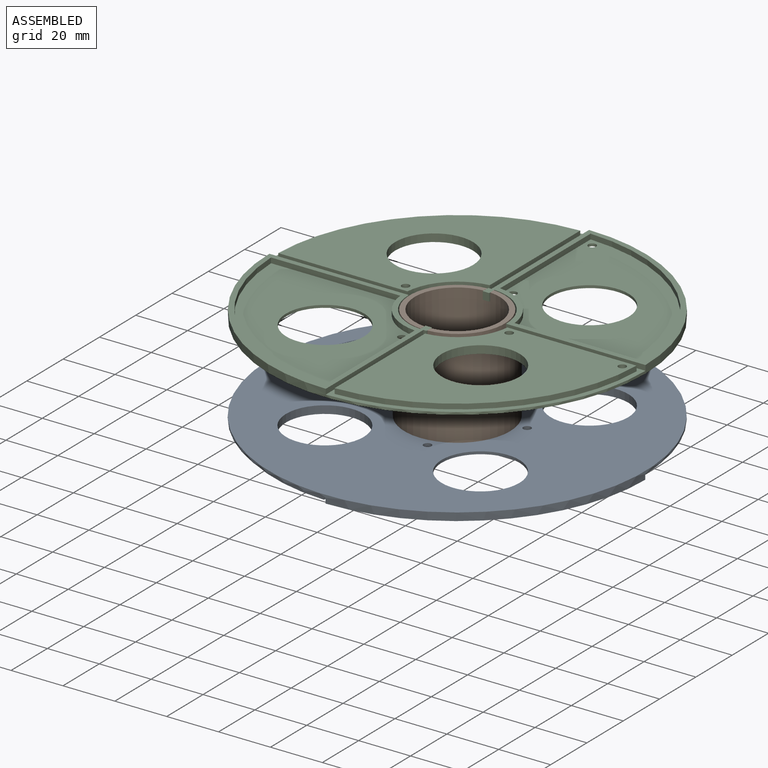
[diagram: assembled view]
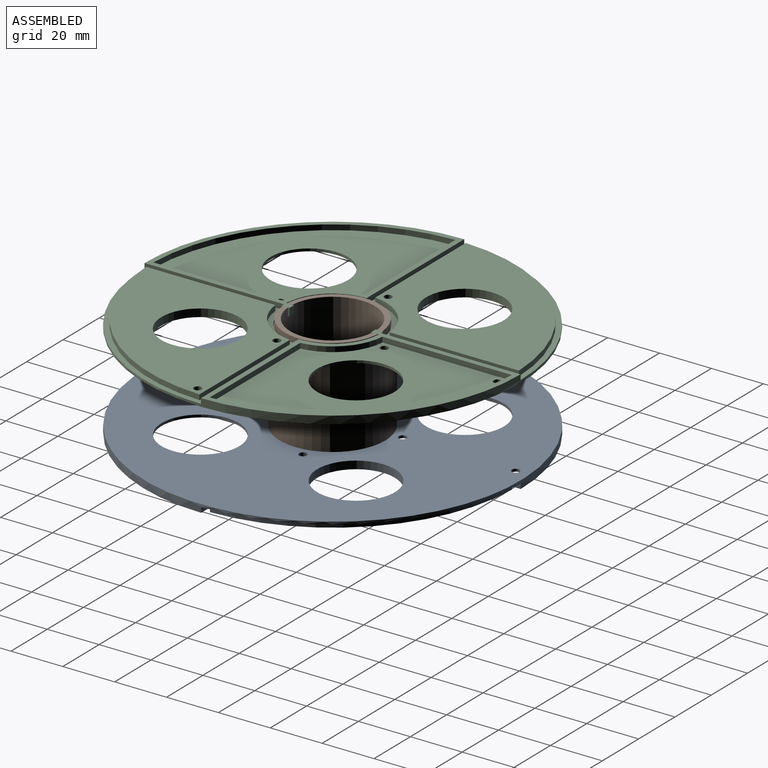
[diagram: assembled view, second angle]
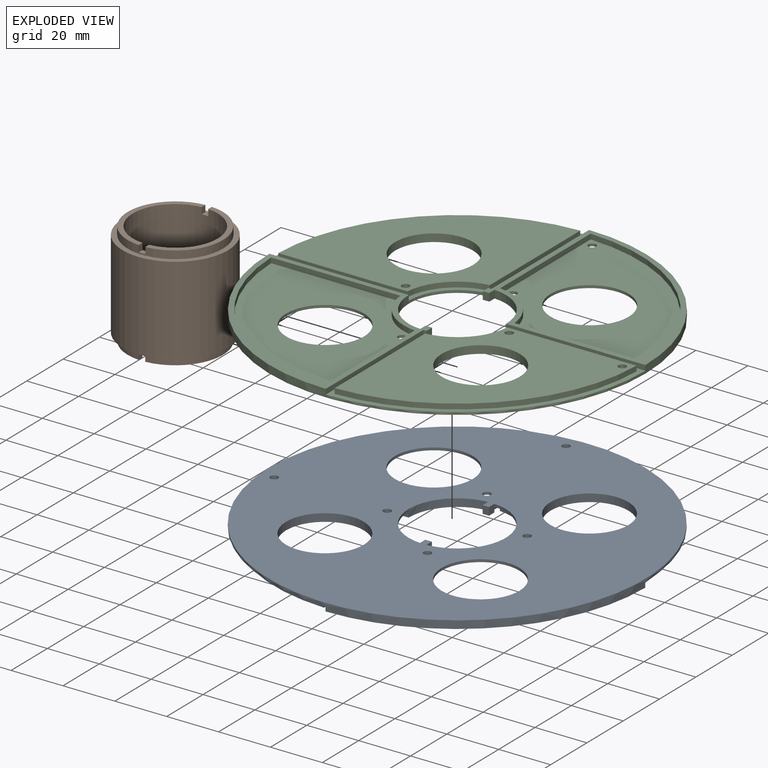
[diagram: exploded view]
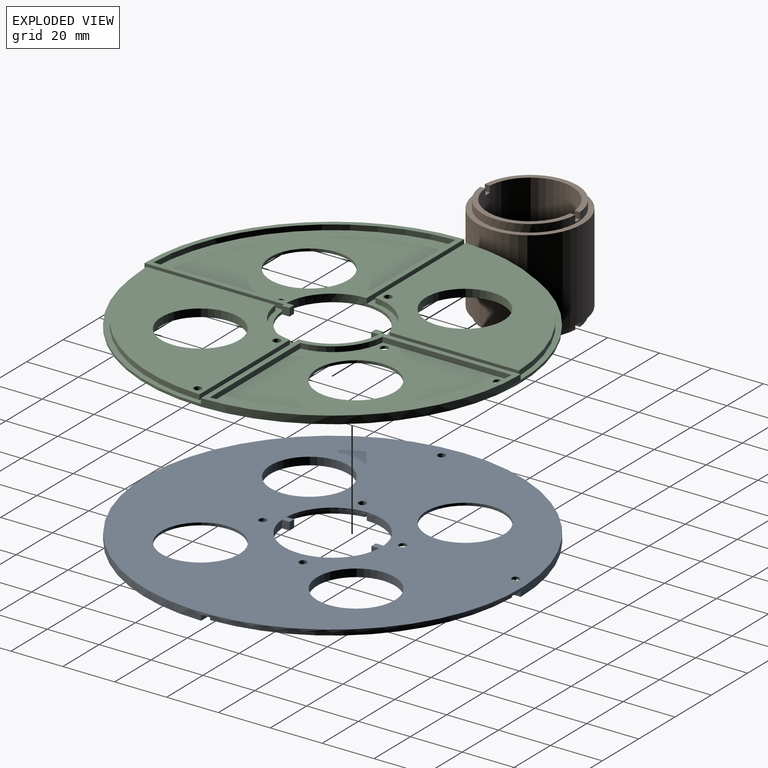
[diagram: exploded view, second angle]
ASSEMBLY  parts=3 mates=2
PART A: 50 faces, bbox 145x145x3 mm
  f0: cylinder r=18.75mm len=37.42mm, axis (0,0,-1), area 112.8mm2, adj f2,f5,f7,f10,f43,f46
  f1: plane 73.75x72.5mm, normal (0,0,1), area 493.2mm2, adj f4,f6,f9,f11,f27,f28,f29,f30
  f2: plane 72.5x72.5mm, normal (0,0,1), area 485.8mm2, adj f0,f6,f10,f11,f17,f18,f19,f20
  f3: plane 72.5x72.5mm, normal (0,0,1), area 485.8mm2, adj f4,f6,f8,f9,f12,f13,f14,f15
  f4: cylinder r=18.75mm len=37.42mm, axis (0,0,-1), area 112.8mm2, adj f1,f3,f7,f9,f44,f48
  f5: plane 73.75x72.5mm, normal (0,0,1), area 493.2mm2, adj f0,f6,f8,f10,f22,f23,f24,f25
  f6: cylinder r=72.5mm len=145mm, axis (0,0,-1), area 911.1mm2, adj f1,f2,f3,f5,f7,f8,f9,f10
  f7: plane 145x145mm, normal (0,0,-1), area 12553.6mm2, adj f0,f4,f6,f32,f33,f34,f35,f36
  f8: plane 53.75x2mm, normal (-1,0,0), area 107.5mm2, adj f3,f5,f6,f49
  f9: plane 53.75x2mm, normal (0,1,0), area 107.5mm2, adj f1,f3,f4,f6
  f10: plane 53.75x2mm, normal (0,-1,0), area 107.5mm2, adj f0,f2,f5,f6
  f11: plane 53.75x2mm, normal (1,0,0), area 107.5mm2, adj f1,f2,f6,f42
  f12: plane 49.82x2mm, normal (1,0,0), area 99.6mm2, adj f3,f13,f15,f16
  f13: cylinder r=70.5mm len=68.47mm, axis (0,0,-1), area 213.5mm2, adj f3,f12,f14,f16
  f14: plane 49.82x2mm, normal (0,-1,0), area 99.6mm2, adj f3,f13,f15,f16
  f15: cylinder r=20.75mm len=18.65mm, axis (0,0,-1), area 57.2mm2, adj f3,f12,f14,f16
  f16: plane 68.47x68.47mm, normal (0,0,1), area 2652.4mm2, adj f12,f13,f14,f15,f40,f41
  f17: cylinder r=20.75mm len=18.65mm, axis (0,0,-1), area 57.2mm2, adj f2,f18,f20,f21
  f18: plane 49.82x2mm, normal (-1,0,0), area 99.6mm2, adj f2,f17,f19,f21
  f19: cylinder r=70.5mm len=68.47mm, axis (0,0,-1), area 213.5mm2, adj f2,f18,f20,f21
  f20: plane 49.82x2mm, normal (0,1,0), area 99.6mm2, adj f2,f17,f19,f21
  f21: plane 68.47x68.47mm, normal (0,0,1), area 2645.4mm2, adj f17,f18,f19,f20,f37,f38,f39
  f22: cylinder r=20.75mm len=18.65mm, axis (0,0,1), area 57.2mm2, adj f5,f23,f25,f26
  f23: plane 49.82x2mm, normal (0,1,0), area 99.6mm2, adj f5,f22,f24,f26
  f24: cylinder r=70.5mm len=68.47mm, axis (0,0,1), area 213.5mm2, adj f5,f23,f25,f26
  f25: plane 49.82x2mm, normal (1,0,0), area 99.6mm2, adj f5,f22,f24,f26
  f26: plane 68.47x68.47mm, normal (0,0,1), area 2645.4mm2, adj f22,f23,f24,f25,f34,f35,f36
  f27: plane 49.82x2mm, normal (0,-1,0), area 99.6mm2, adj f1,f28,f30,f31
  f28: cylinder r=70.5mm len=68.47mm, axis (0,0,1), area 213.5mm2, adj f1,f27,f29,f31
  f29: plane 49.82x2mm, normal (-1,0,0), area 99.6mm2, adj f1,f28,f30,f31
  f30: cylinder r=20.75mm len=18.65mm, axis (0,0,1), area 57.2mm2, adj f1,f27,f29,f31
  f31: plane 68.47x68.47mm, normal (0,0,1), area 2652.4mm2, adj f27,f28,f29,f30,f32,f33
  f32: cylinder r=1.5mm len=3mm, axis (0,0,1), area 9.4mm2, adj f7,f31
  f33: cylinder r=15mm len=30mm, axis (0,0,1), area 94.2mm2, adj f7,f31
  f34: cylinder r=1.5mm len=3mm, axis (0,0,1), area 9.4mm2, adj f7,f26
  f35: cylinder r=15mm len=30mm, axis (0,0,1), area 94.2mm2, adj f7,f26
  f36: cylinder r=1.5mm len=3mm, axis (0,0,1), area 9.4mm2, adj f7,f26
  f37: cylinder r=1.5mm len=3mm, axis (0,0,1), area 28.3mm2, adj f7,f21
  f38: cylinder r=15mm len=30mm, axis (0,0,1), area 282.7mm2, adj f7,f21
  f39: cylinder r=1.5mm len=3mm, axis (0,0,1), area 28.3mm2, adj f7,f21
  f40: cylinder r=15mm len=30mm, axis (0,0,1), area 282.7mm2, adj f7,f16
  f41: cylinder r=1.5mm len=3mm, axis (0,0,1), area 28.3mm2, adj f7,f16
  f42: cylinder r=18.75mm len=2mm, axis (0,0,-1), area 2.5mm2, adj f1,f2,f11,f43
  f43: plane 3x2.96mm, normal (1,0,0), area 8.9mm2, adj f0,f1,f7,f42,f45
  f44: plane 3x2.96mm, normal (-1,0,0), area 8.9mm2, adj f1,f4,f7,f45
  f45: plane 3x2.5mm, normal (0,1,0), area 7.5mm2, adj f1,f7,f43,f44
  f46: plane 3x2.96mm, normal (1,0,0), area 8.9mm2, adj f0,f5,f7,f47
  f47: plane 3x2.5mm, normal (0,-1,0), area 7.5mm2, adj f5,f7,f46,f48
  f48: plane 3x2.96mm, normal (-1,0,0), area 8.9mm2, adj f4,f5,f7,f47,f49
  f49: cylinder r=18.75mm len=2mm, axis (0,0,-1), area 2.5mm2, adj f3,f5,f8,f48
PART B: 22 faces, bbox 40.8x40.8x40 mm
  f0: cylinder r=18.38mm len=36.75mm, axis (0,0,-1), area 333.9mm2, adj f2,f3,f4,f6,f7,f8,f9,f10
  f1: cylinder r=16.38mm len=40mm, axis (0,0,-1), area 4090.5mm2, adj f2,f3,f6,f7,f8,f9,f10,f11
  f2: plane 36.67x17.13mm, normal (0,0,-1), area 104.2mm2, adj f0,f1,f8,f11
  f3: plane 36.67x17.13mm, normal (0,0,-1), area 104.2mm2, adj f0,f1,f7,f10
  f4: plane 40.75x40.75mm, normal (0,0,-1), area 243.5mm2, adj f0,f5
  f5: cylinder r=20.38mm len=40.75mm, axis (0,0,1), area 4352.7mm2, adj f4,f15
  f6: plane 2.5x2.05mm, normal (0,0,-1), area 5mm2, adj f0,f1,f7,f8
  f7: plane 2.5x2.01mm, normal (-1,0,0), area 5mm2, adj f0,f1,f3,f6
  f8: plane 2.5x2.01mm, normal (1,0,0), area 5mm2, adj f0,f1,f2,f6
  f9: plane 2.5x2.05mm, normal (0,0,-1), area 5mm2, adj f0,f1,f10,f11
  f10: plane 2.5x2.01mm, normal (-1,0,0), area 5mm2, adj f0,f1,f3,f9
  f11: plane 2.5x2.01mm, normal (1,0,0), area 5mm2, adj f0,f1,f2,f9
  f12: cylinder r=18.38mm len=36.75mm, axis (0,0,1), area 333.9mm2, adj f13,f14,f15,f16,f17,f18,f19,f20
  f13: plane 36.67x17.13mm, normal (0,0,1), area 104.2mm2, adj f1,f12,f18,f21
  f14: plane 36.67x17.13mm, normal (0,0,1), area 104.2mm2, adj f1,f12,f17,f20
  f15: plane 40.75x40.75mm, normal (0,0,1), area 243.5mm2, adj f5,f12
  f16: plane 2.5x2.05mm, normal (0,0,1), area 5mm2, adj f1,f12,f17,f18
  f17: plane 2.5x2.01mm, normal (-1,0,0), area 5mm2, adj f1,f12,f14,f16
  f18: plane 2.5x2.01mm, normal (1,0,0), area 5mm2, adj f1,f12,f13,f16
  f19: plane 2.5x2.05mm, normal (0,0,1), area 5mm2, adj f1,f12,f20,f21
  f20: plane 2.5x2.01mm, normal (-1,0,0), area 5mm2, adj f1,f12,f14,f19
  f21: plane 2.5x2.01mm, normal (1,0,0), area 5mm2, adj f1,f12,f13,f19
PART C: same geometry as A
PLACE A rot(axis=(0,1,0),180deg) t=(-0.04,0.03,3)mm
PLACE B at identity
PLACE C t=(0.04,0.03,37)mm
MATE fastened A.f7 <-> B.f0  axis (0,0,1) through (0,0,3)mm
MATE fastened C.f7 <-> B.f0  axis (0,0,-1) through (0,0,37)mm
